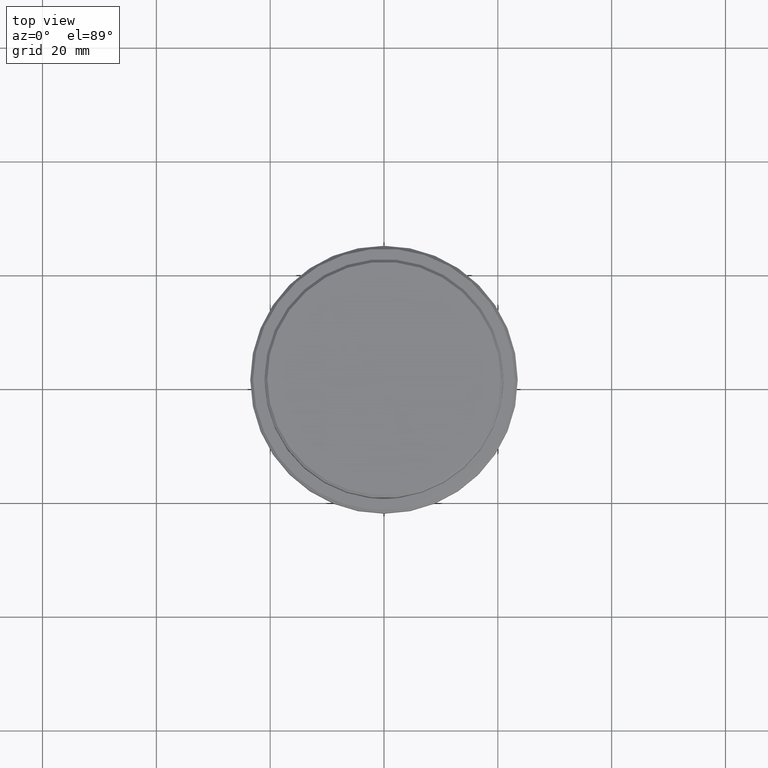
[diagram: clean part render]
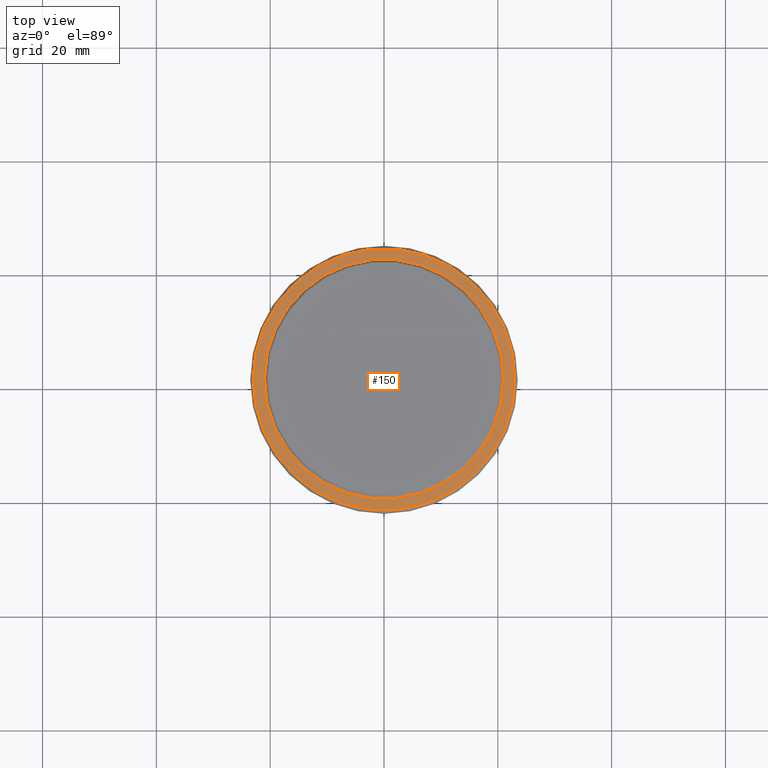
[diagram: same view with one face highlighted and labeled with its STEP entity id]
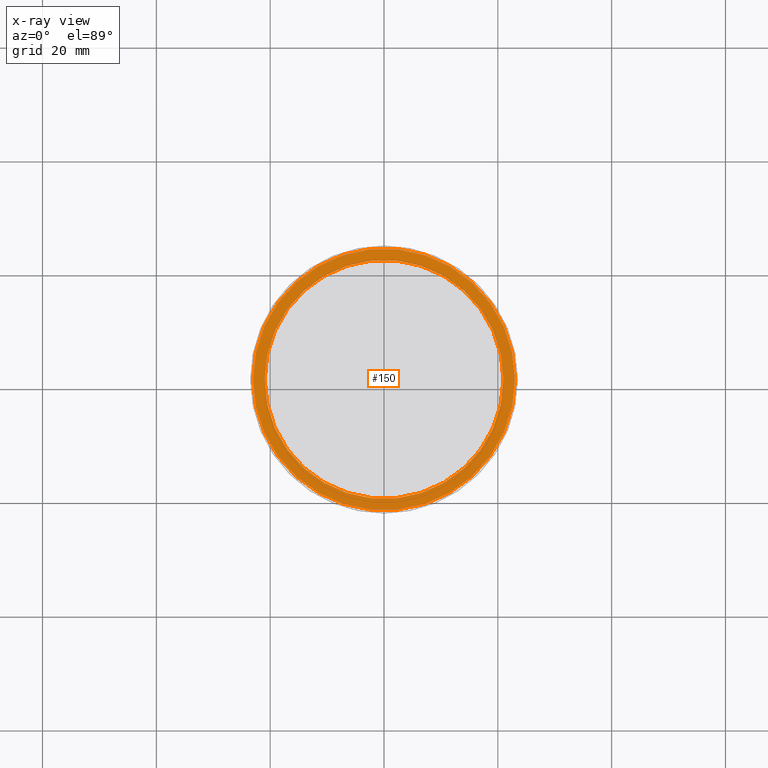
[diagram: x-ray of the same camera — body ghosted, the highlighted face saturated]
A machine part, top view. The second image highlights one B-rep face of the part: STEP entity #150.
The next image is the same camera in x-ray: the body ghosted, the highlighted face saturated — about 0% of this face is hidden behind the body in this view.
In plain terms, the highlighted planar face has unit normal (0, -0, 1).
Its self-contained STEP definition (entity closure, byte-faithful):
#2 = DIRECTION ( 'NONE',  ( 1.000000000000000000, 0.000000000000000000, 0.000000000000000000 ) ) ;
#20 = CIRCLE ( 'NONE', #68, 23.00000000000001066 ) ;
#44 = DIRECTION ( 'NONE',  ( 0.000000000000000000, 0.000000000000000000, -1.000000000000000000 ) ) ;
#52 = EDGE_CURVE ( 'NONE', #527, #148, #20, .T. ) ;
#66 = DIRECTION ( 'NONE',  ( 1.000000000000000000, 0.000000000000000000, 0.000000000000000000 ) ) ;
#68 = AXIS2_PLACEMENT_3D ( 'NONE', #1137, #395, #66 ) ;
#88 = CARTESIAN_POINT ( 'NONE',  ( 0.000000000000000000, 0.000000000000000000, -9.000000000000001776 ) ) ;
#148 = VERTEX_POINT ( 'NONE', #1090 ) ;
#150 = ADVANCED_FACE ( 'NONE', ( #548, #343 ), #327, .T. ) ;
#302 = EDGE_CURVE ( 'NONE', #643, #982, #914, .T. ) ;
#327 = PLANE ( 'NONE',  #1149 ) ;
#343 = FACE_BOUND ( 'NONE', #996, .T. ) ;
#381 = DIRECTION ( 'NONE',  ( 0.000000000000000000, 0.000000000000000000, -1.000000000000000000 ) ) ;
#395 = DIRECTION ( 'NONE',  ( -0.000000000000000000, -0.000000000000000000, 1.000000000000000000 ) ) ;
#413 = DIRECTION ( 'NONE',  ( -0.000000000000000000, -0.000000000000000000, 1.000000000000000000 ) ) ;
#416 = EDGE_LOOP ( 'NONE', ( #570, #587 ) ) ;
#503 = DIRECTION ( 'NONE',  ( 1.000000000000000000, 0.000000000000000000, 0.000000000000000000 ) ) ;
#527 = VERTEX_POINT ( 'NONE', #622 ) ;
#548 = FACE_OUTER_BOUND ( 'NONE', #416, .T. ) ;
#570 = ORIENTED_EDGE ( 'NONE', *, *, #52, .T. ) ;
#587 = ORIENTED_EDGE ( 'NONE', *, *, #1008, .T. ) ;
#621 = ORIENTED_EDGE ( 'NONE', *, *, #302, .T. ) ;
#622 = CARTESIAN_POINT ( 'NONE',  ( -23.00000000000001066, 0.000000000000000000, -9.000000000000001776 ) ) ;
#643 = VERTEX_POINT ( 'NONE', #1158 ) ;
#690 = CIRCLE ( 'NONE', #1309, 20.99999999999999289 ) ;
#757 = DIRECTION ( 'NONE',  ( 1.000000000000000000, 0.000000000000000000, 0.000000000000000000 ) ) ;
#910 = EDGE_CURVE ( 'NONE', #982, #643, #690, .T. ) ;
#914 = CIRCLE ( 'NONE', #1354, 20.99999999999999289 ) ;
#982 = VERTEX_POINT ( 'NONE', #1051 ) ;
#992 = CARTESIAN_POINT ( 'NONE',  ( 0.000000000000000000, 20.49999999999999645, -9.000000000000001776 ) ) ;
#996 = EDGE_LOOP ( 'NONE', ( #621, #1059 ) ) ;
#1000 = CARTESIAN_POINT ( 'NONE',  ( 0.000000000000000000, 0.000000000000000000, -9.000000000000001776 ) ) ;
#1008 = EDGE_CURVE ( 'NONE', #148, #527, #1223, .T. ) ;
#1051 = CARTESIAN_POINT ( 'NONE',  ( -20.99999999999999289, 2.571758278209440872E-15, -9.000000000000001776 ) ) ;
#1059 = ORIENTED_EDGE ( 'NONE', *, *, #910, .T. ) ;
#1090 = CARTESIAN_POINT ( 'NONE',  ( 23.00000000000001066, 2.847303808017596928E-15, -9.000000000000001776 ) ) ;
#1137 = CARTESIAN_POINT ( 'NONE',  ( 0.000000000000000000, 0.000000000000000000, -9.000000000000001776 ) ) ;
#1149 = AXIS2_PLACEMENT_3D ( 'NONE', #992, #1217, #757 ) ;
#1158 = CARTESIAN_POINT ( 'NONE',  ( 20.99999999999999289, 0.000000000000000000, -9.000000000000001776 ) ) ;
#1186 = DIRECTION ( 'NONE',  ( 1.000000000000000000, 0.000000000000000000, 0.000000000000000000 ) ) ;
#1217 = DIRECTION ( 'NONE',  ( 0.000000000000000000, -0.000000000000000000, 1.000000000000000000 ) ) ;
#1223 = CIRCLE ( 'NONE', #1276, 23.00000000000001066 ) ;
#1276 = AXIS2_PLACEMENT_3D ( 'NONE', #88, #413, #1186 ) ;
#1309 = AXIS2_PLACEMENT_3D ( 'NONE', #1378, #381, #2 ) ;
#1354 = AXIS2_PLACEMENT_3D ( 'NONE', #1000, #44, #503 ) ;
#1378 = CARTESIAN_POINT ( 'NONE',  ( 0.000000000000000000, 0.000000000000000000, -9.000000000000001776 ) ) ;